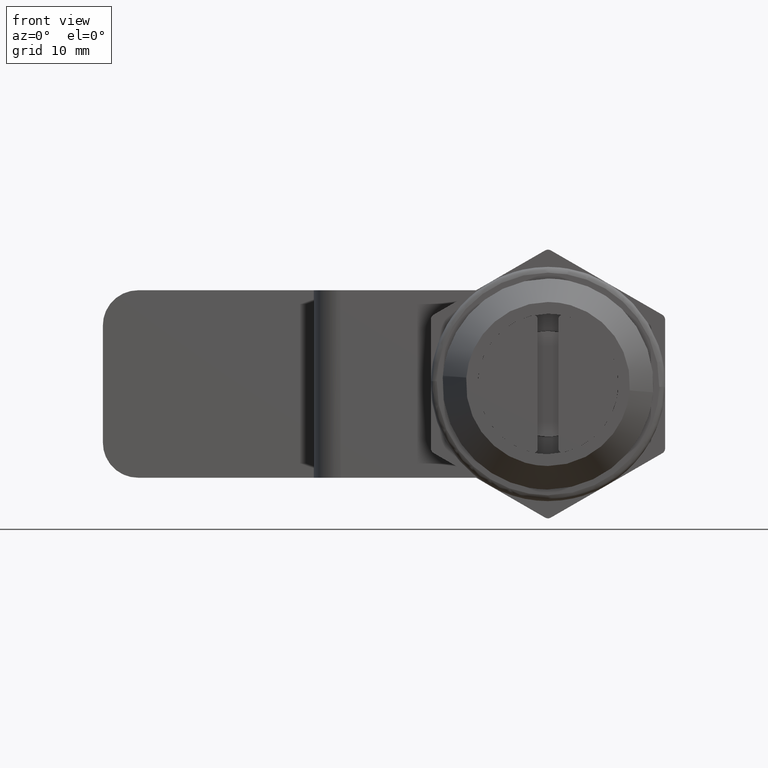
[diagram: clean part render]
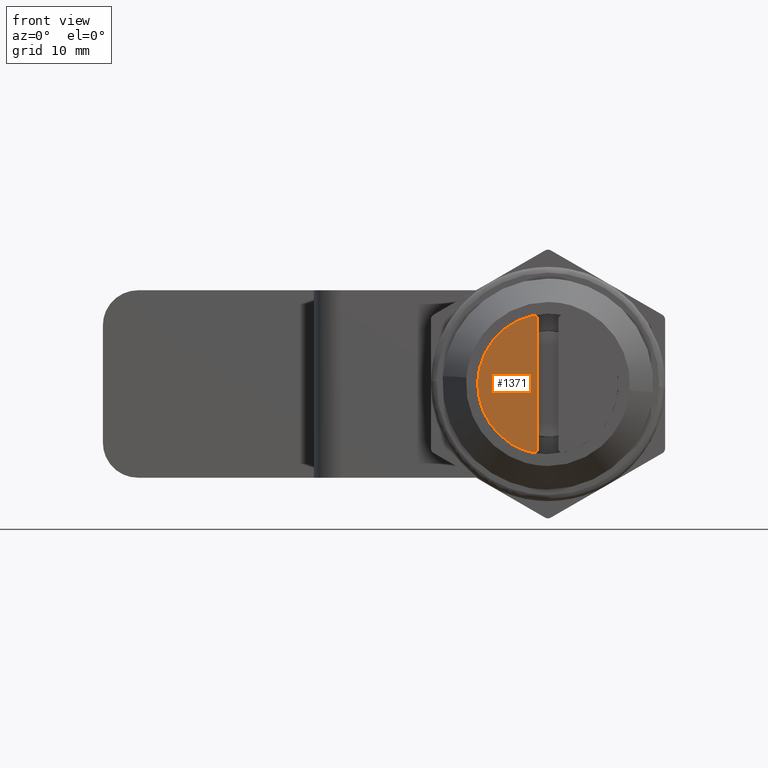
[diagram: same view with one face highlighted and labeled with its STEP entity id]
A machine part, front view. The second image highlights one B-rep face of the part: STEP entity #1371.
In plain terms, the highlighted face is a freeform B-spline surface patch.
Its self-contained STEP definition (entity closure, byte-faithful):
#965=CARTESIAN_POINT('',(-1.263157894736640,1.172396E-013,5.865529143475849));
#966=VERTEX_POINT('',#965);
#972=CARTESIAN_POINT('',(-0.899999999999806,0.0,5.572252686302059));
#973=VERTEX_POINT('',#972);
#974=CARTESIAN_POINT('',(-0.899999999999806,0.0,5.572252686302059));
#975=CARTESIAN_POINT('',(-0.899999999999806,1.172396E-013,5.715591582526173));
#976=CARTESIAN_POINT('',(-1.011515741268540,1.172396E-013,5.805648667866707));
#977=CARTESIAN_POINT('',(-1.123031482537274,1.172396E-013,5.895705753207240));
#978=CARTESIAN_POINT('',(-1.263157894736640,1.172396E-013,5.865529143475851));
#986=(BOUNDED_CURVE()B_SPLINE_CURVE(2,(#974,#975,#976,#977,#978),.UNSPECIFIED.,.F.,.U.)B_SPLINE_CURVE_WITH_KNOTS((3,2,3),(0.0,0.500000000000000,1.0),.UNSPECIFIED.)CURVE()GEOMETRIC_REPRESENTATION_ITEM()RATIONAL_B_SPLINE_CURVE((1.0,0.902297307553767,1.0,0.902297307553767,1.0))REPRESENTATION_ITEM(''));
#987=EDGE_CURVE('',#973,#966,#986,.T.);
#1160=CARTESIAN_POINT('',(-0.899999999999807,0.0,-5.572252686302059));
#1161=VERTEX_POINT('',#1160);
#1167=CARTESIAN_POINT('',(-1.263157894736640,1.172396E-013,-5.865529143475849));
#1168=VERTEX_POINT('',#1167);
#1169=CARTESIAN_POINT('',(-1.263157894736640,1.172396E-013,-5.865529143475851));
#1170=CARTESIAN_POINT('',(-1.123031482537274,1.172396E-013,-5.895705753207240));
#1171=CARTESIAN_POINT('',(-1.011515741268540,1.172396E-013,-5.805648667866707));
#1172=CARTESIAN_POINT('',(-0.899999999999806,1.172396E-013,-5.715591582526173));
#1173=CARTESIAN_POINT('',(-0.899999999999807,0.0,-5.572252686302059));
#1181=(BOUNDED_CURVE()B_SPLINE_CURVE(2,(#1169,#1170,#1171,#1172,#1173),.UNSPECIFIED.,.F.,.U.)B_SPLINE_CURVE_WITH_KNOTS((3,2,3),(0.0,0.500000000000000,1.0),.UNSPECIFIED.)CURVE()GEOMETRIC_REPRESENTATION_ITEM()RATIONAL_B_SPLINE_CURVE((1.0,0.902297307553767,1.0,0.902297307553767,1.0))REPRESENTATION_ITEM(''));
#1182=EDGE_CURVE('',#1168,#1161,#1181,.T.);
#1209=CARTESIAN_POINT('',(-0.899999999999806,0.0,5.572252686302059));
#1210=CARTESIAN_POINT('',(-0.899999999999807,0.0,-5.572252686302059));
#1211=QUASI_UNIFORM_CURVE('',1,(#1209,#1210),.UNSPECIFIED.,.F.,.U.);
#1212=EDGE_CURVE('',#973,#1161,#1211,.T.);
#1310=CARTESIAN_POINT('',(-1.263157894736637,1.172396E-013,5.865529143475848));
#1311=CARTESIAN_POINT('',(-6.0,1.172396E-013,4.845437118523663));
#1312=CARTESIAN_POINT('',(-6.0,1.172396E-013,-3.061516E-016));
#1313=CARTESIAN_POINT('',(-6.0,1.172396E-013,-4.845437118523662));
#1314=CARTESIAN_POINT('',(-1.263157894736639,1.172396E-013,-5.865529143475847));
#1322=(BOUNDED_CURVE()B_SPLINE_CURVE(2,(#1310,#1311,#1312,#1313,#1314),.UNSPECIFIED.,.F.,.U.)B_SPLINE_CURVE_WITH_KNOTS((3,2,3),(0.0,0.500000000000000,1.0),.UNSPECIFIED.)CURVE()GEOMETRIC_REPRESENTATION_ITEM()RATIONAL_B_SPLINE_CURVE((1.0,0.777986605215488,1.0,0.777986605215488,1.0))REPRESENTATION_ITEM(''));
#1323=EDGE_CURVE('',#966,#1168,#1322,.T.);
#1360=CARTESIAN_POINT('',(-6.254744990115208,1.172396E-013,-6.458783028317185));
#1361=CARTESIAN_POINT('',(-6.254744990115208,1.172396E-013,6.458783189934747));
#1362=CARTESIAN_POINT('',(-0.645254873091927,1.172396E-013,-6.458783028317185));
#1363=CARTESIAN_POINT('',(-0.645254873091927,1.172396E-013,6.458783189934747));
#1364=B_SPLINE_SURFACE_WITH_KNOTS('',1,1,((#1360,#1362),(#1361,#1363)),.UNSPECIFIED.,.F.,.F.,.U.,(2,2),(2,2),(0.0,12.917566218251929),(0.0,5.609490117023281),.UNSPECIFIED.);
#1365=ORIENTED_EDGE('',*,*,#1323,.T.);
#1366=ORIENTED_EDGE('',*,*,#1182,.T.);
#1367=ORIENTED_EDGE('',*,*,#1212,.F.);
#1368=ORIENTED_EDGE('',*,*,#987,.T.);
#1369=EDGE_LOOP('',(#1365,#1366,#1367,#1368));
#1370=FACE_OUTER_BOUND('',#1369,.T.);
#1371=ADVANCED_FACE('',(#1370),#1364,.F.);